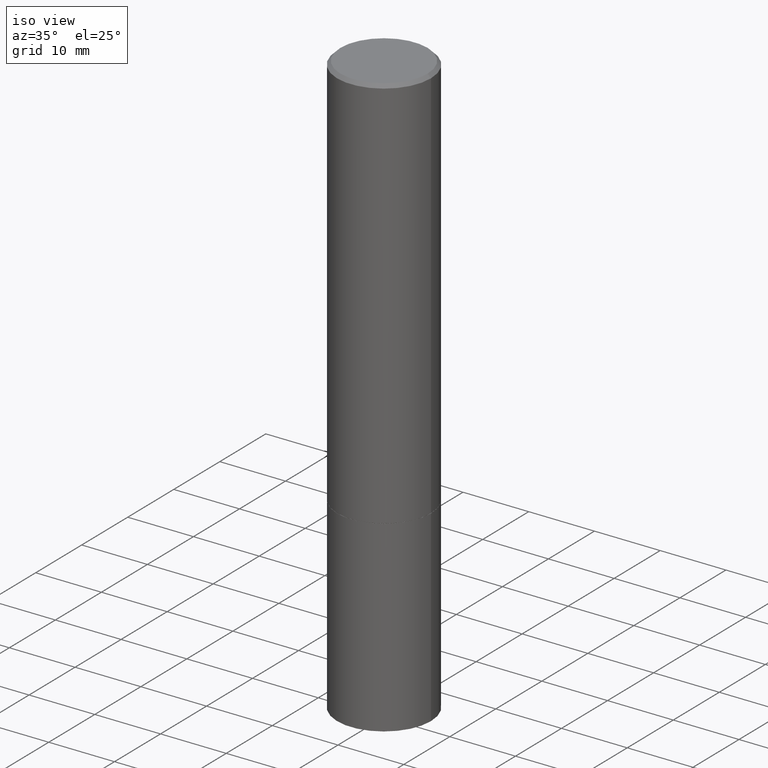
[diagram: clean part render]
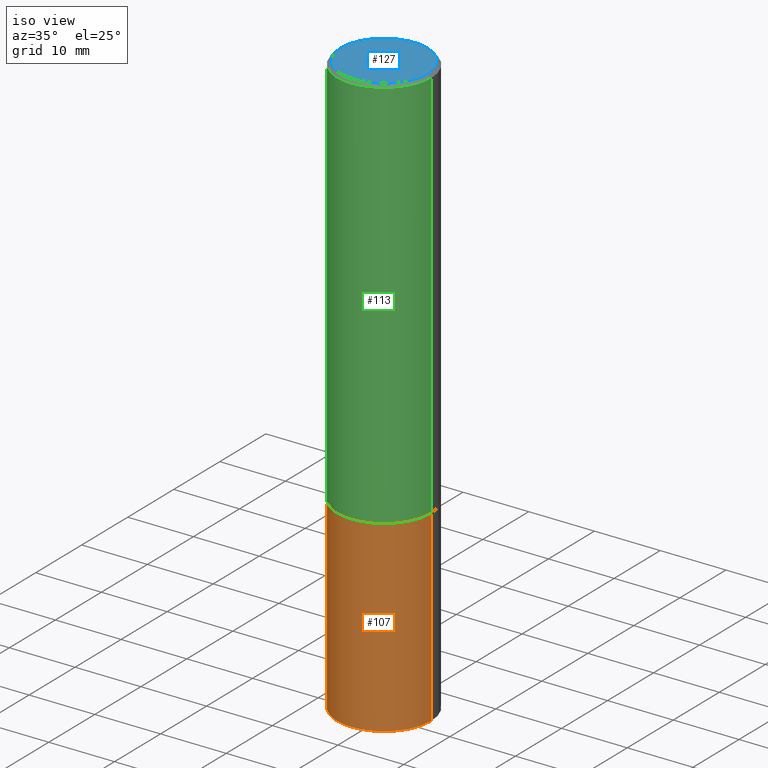
[diagram: same view with three faces highlighted in distinct colors, each labeled with its STEP entity id]
A machine part, iso view with three faces highlighted in distinct colors.
Their STEP definitions:

[orange] entity #107 — the highlighted cylindrical surface (partial cylindrical patch) has radius 7.1437 mm, axis along (-0, 0, 1).
#2 = DIRECTION ( 'NONE',  ( -2.445468806185136597E-29, 3.491481338843145583E-15, 1.000000000000000000 ) ) ;
#19 = VERTEX_POINT ( 'NONE', #61 ) ;
#28 = CARTESIAN_POINT ( 'NONE',  ( 5.807988414689698296E-29, -8.292268179752468540E-15, -2.374999999999999556 ) ) ;
#34 = DIRECTION ( 'NONE',  ( 1.000000000000000000, -6.982962677686269866E-15, 0.000000000000000000 ) ) ;
#51 = AXIS2_PLACEMENT_3D ( 'NONE', #330, #95, #180 ) ;
#54 = DIRECTION ( 'NONE',  ( -2.445468806185136877E-29, 3.491481338843145188E-15, 1.000000000000000000 ) ) ;
#55 = VERTEX_POINT ( 'NONE', #242 ) ;
#61 = CARTESIAN_POINT ( 'NONE',  ( -0.2812500000000000000, -8.257824988526457957E-15, -2.374999999999999556 ) ) ;
#69 = CARTESIAN_POINT ( 'NONE',  ( 0.2812500000000000000, -1.963958253099262512E-15, 1.371424718192607012E-29 ) ) ;
#71 = CARTESIAN_POINT ( 'NONE',  ( 8.559140821647976968E-29, -1.222018468595100934E-14, -3.500000000000000000 ) ) ;
#84 = CARTESIAN_POINT ( 'NONE',  ( 0.2812499999999998890, -1.414969974782425102E-14, -3.500000000000000000 ) ) ;
#90 = CARTESIAN_POINT ( 'NONE',  ( -0.2812500000000000000, 1.998401444325281773E-15, -1.383450494134192269E-29 ) ) ;
#95 = DIRECTION ( 'NONE',  ( -2.445468806185136597E-29, 3.491481338843145583E-15, 1.000000000000000000 ) ) ;
#96 = EDGE_CURVE ( 'NONE', #19, #55, #267, .T. ) ;
#101 = VERTEX_POINT ( 'NONE', #120 ) ;
#107 = ADVANCED_FACE ( 'NONE', ( #150 ), #123, .T. ) ;
#120 = CARTESIAN_POINT ( 'NONE',  ( -0.2812499999999998890, -1.025622643285174762E-14, -3.500000000000000000 ) ) ;
#123 = CYLINDRICAL_SURFACE ( 'NONE', #51, 0.2812500000000000000 ) ;
#146 = DIRECTION ( 'NONE',  ( -2.445468806185136597E-29, 3.491481338843145583E-15, 1.000000000000000000 ) ) ;
#150 = FACE_OUTER_BOUND ( 'NONE', #157, .T. ) ;
#152 = EDGE_CURVE ( 'NONE', #101, #19, #296, .T. ) ;
#157 = EDGE_LOOP ( 'NONE', ( #179, #205, #274, #183 ) ) ;
#173 = VECTOR ( 'NONE', #54, 39.37007874015748143 ) ;
#179 = ORIENTED_EDGE ( 'NONE', *, *, #152, .F. ) ;
#180 = DIRECTION ( 'NONE',  ( 1.000000000000000000, -6.982962677686266711E-15, 4.876176775795935793E-29 ) ) ;
#183 = ORIENTED_EDGE ( 'NONE', *, *, #96, .F. ) ;
#202 = VECTOR ( 'NONE', #214, 39.37007874015748143 ) ;
#205 = ORIENTED_EDGE ( 'NONE', *, *, #333, .T. ) ;
#214 = DIRECTION ( 'NONE',  ( -2.445468806185136877E-29, 3.491481338843145188E-15, 1.000000000000000000 ) ) ;
#232 = AXIS2_PLACEMENT_3D ( 'NONE', #71, #2, #34 ) ;
#233 = VERTEX_POINT ( 'NONE', #84 ) ;
#242 = CARTESIAN_POINT ( 'NONE',  ( 0.2812500000000000000, -1.025622643285173184E-14, -2.374999999999999556 ) ) ;
#246 = DIRECTION ( 'NONE',  ( 1.000000000000000000, -6.982962677686266711E-15, 0.000000000000000000 ) ) ;
#267 = CIRCLE ( 'NONE', #346, 0.2812500000000000000 ) ;
#268 = CIRCLE ( 'NONE', #232, 0.2812500000000000000 ) ;
#274 = ORIENTED_EDGE ( 'NONE', *, *, #289, .T. ) ;
#279 = LINE ( 'NONE', #69, #202 ) ;
#289 = EDGE_CURVE ( 'NONE', #233, #55, #279, .T. ) ;
#296 = LINE ( 'NONE', #90, #173 ) ;
#330 = CARTESIAN_POINT ( 'NONE',  ( 0.000000000000000000, 0.000000000000000000, 0.000000000000000000 ) ) ;
#333 = EDGE_CURVE ( 'NONE', #101, #233, #268, .T. ) ;
#346 = AXIS2_PLACEMENT_3D ( 'NONE', #28, #146, #246 ) ;

[blue] entity #127 — the highlighted planar face has unit normal (0, -0, -1).
#24 = DIRECTION ( 'NONE',  ( -1.000000000000000000, 6.982962677686265922E-15, -4.876176775795935793E-29 ) ) ;
#60 = CIRCLE ( 'NONE', #210, 0.2612499999999996492 ) ;
#64 = CARTESIAN_POINT ( 'NONE',  ( 0.000000000000000000, 0.000000000000000000, 0.000000000000000000 ) ) ;
#81 = ORIENTED_EDGE ( 'NONE', *, *, #356, .T. ) ;
#83 = EDGE_CURVE ( 'NONE', #207, #354, #192, .T. ) ;
#98 = AXIS2_PLACEMENT_3D ( 'NONE', #64, #363, #182 ) ;
#111 = ORIENTED_EDGE ( 'NONE', *, *, #83, .T. ) ;
#127 = ADVANCED_FACE ( 'NONE', ( #390 ), #215, .F. ) ;
#143 = EDGE_LOOP ( 'NONE', ( #111, #81 ) ) ;
#182 = DIRECTION ( 'NONE',  ( 1.000000000000000000, -6.982962677686266711E-15, 4.876176775795935793E-29 ) ) ;
#186 = AXIS2_PLACEMENT_3D ( 'NONE', #332, #297, #24 ) ;
#192 = CIRCLE ( 'NONE', #98, 0.2612499999999996492 ) ;
#207 = VERTEX_POINT ( 'NONE', #266 ) ;
#210 = AXIS2_PLACEMENT_3D ( 'NONE', #340, #247, #249 ) ;
#215 = PLANE ( 'NONE',  #186 ) ;
#247 = DIRECTION ( 'NONE',  ( -2.445468806185136597E-29, 3.491481338843145583E-15, 1.000000000000000000 ) ) ;
#249 = DIRECTION ( 'NONE',  ( 1.000000000000000000, -6.982962677686266711E-15, 4.876176775795935793E-29 ) ) ;
#266 = CARTESIAN_POINT ( 'NONE',  ( -0.2612499999999996492, 1.859213812933965987E-15, -1.288019758893701349E-29 ) ) ;
#276 = CARTESIAN_POINT ( 'NONE',  ( 0.2612499999999996492, -1.895824895283957203E-15, 1.300802449975685970E-29 ) ) ;
#297 = DIRECTION ( 'NONE',  ( 2.438088387897960049E-29, -3.491481338843145188E-15, -1.000000000000000000 ) ) ;
#332 = CARTESIAN_POINT ( 'NONE',  ( 1.824298999545534733E-15, 0.2612499999999996492, -9.121494997727707190E-16 ) ) ;
#340 = CARTESIAN_POINT ( 'NONE',  ( 0.000000000000000000, 0.000000000000000000, 0.000000000000000000 ) ) ;
#354 = VERTEX_POINT ( 'NONE', #276 ) ;
#356 = EDGE_CURVE ( 'NONE', #354, #207, #60, .T. ) ;
#363 = DIRECTION ( 'NONE',  ( -2.445468806185136597E-29, 3.491481338843145583E-15, 1.000000000000000000 ) ) ;
#390 = FACE_OUTER_BOUND ( 'NONE', #143, .T. ) ;

[green] entity #113 — the highlighted cylindrical surface (partial cylindrical patch) has radius 7.1437 mm, axis along (-0, 0, 1).
#1 = CYLINDRICAL_SURFACE ( 'NONE', #351, 0.2812499999999998890 ) ;
#5 = LINE ( 'NONE', #100, #162 ) ;
#26 = CARTESIAN_POINT ( 'NONE',  ( 0.000000000000000000, 0.000000000000000000, 0.000000000000000000 ) ) ;
#29 = CARTESIAN_POINT ( 'NONE',  ( -0.2812500000000000555, -2.180901718269960671E-15, -2.373999999999999666 ) ) ;
#32 = VECTOR ( 'NONE', #236, 39.37007874015748143 ) ;
#36 = CARTESIAN_POINT ( 'NONE',  ( 4.890937612370292426E-31, -6.982962677686317493E-17, -0.02000000000000007674 ) ) ;
#62 = VERTEX_POINT ( 'NONE', #129 ) ;
#63 = DIRECTION ( 'NONE',  ( -2.445468806185136877E-29, 3.491481338843145188E-15, 1.000000000000000000 ) ) ;
#67 = FACE_OUTER_BOUND ( 'NONE', #85, .T. ) ;
#70 = ORIENTED_EDGE ( 'NONE', *, *, #371, .T. ) ;
#85 = EDGE_LOOP ( 'NONE', ( #321, #70, #348, #291 ) ) ;
#89 = AXIS2_PLACEMENT_3D ( 'NONE', #245, #313, #151 ) ;
#93 = DIRECTION ( 'NONE',  ( -2.445468806185136597E-29, 3.491481338843145583E-15, 1.000000000000000000 ) ) ;
#100 = CARTESIAN_POINT ( 'NONE',  ( -0.2812499999999998890, 1.998401444325280984E-15, -1.383450494134191428E-29 ) ) ;
#113 = ADVANCED_FACE ( 'NONE', ( #67 ), #1, .T. ) ;
#117 = CIRCLE ( 'NONE', #336, 0.2812499999999997224 ) ;
#129 = CARTESIAN_POINT ( 'NONE',  ( 0.2812499999999997224, -1.999344688650104184E-15, -0.02000000000000007674 ) ) ;
#137 = VERTEX_POINT ( 'NONE', #312 ) ;
#140 = VERTEX_POINT ( 'NONE', #29 ) ;
#151 = DIRECTION ( 'NONE',  ( 1.000000000000000000, -6.982962677686265133E-15, 0.000000000000000000 ) ) ;
#158 = DIRECTION ( 'NONE',  ( -2.445468806185136597E-29, 3.491481338843145583E-15, 1.000000000000000000 ) ) ;
#162 = VECTOR ( 'NONE', #63, 39.37007874015748143 ) ;
#191 = EDGE_CURVE ( 'NONE', #137, #62, #380, .T. ) ;
#236 = DIRECTION ( 'NONE',  ( -2.445468806185136877E-29, 3.491481338843145188E-15, 1.000000000000000000 ) ) ;
#238 = CARTESIAN_POINT ( 'NONE',  ( 0.2812499999999998890, -1.963958253099261723E-15, 1.371424718192606451E-29 ) ) ;
#240 = VERTEX_POINT ( 'NONE', #252 ) ;
#244 = DIRECTION ( 'NONE',  ( 1.000000000000000000, -6.982962677686266711E-15, 4.876176775795935793E-29 ) ) ;
#245 = CARTESIAN_POINT ( 'NONE',  ( 5.805542945883512693E-29, -8.288776698413627111E-15, -2.373999999999999666 ) ) ;
#251 = EDGE_CURVE ( 'NONE', #240, #62, #117, .T. ) ;
#252 = CARTESIAN_POINT ( 'NONE',  ( -0.2812499999999997224, 1.894128626322397242E-15, -0.02000000000000007674 ) ) ;
#259 = CIRCLE ( 'NONE', #89, 0.2812500000000000555 ) ;
#264 = EDGE_CURVE ( 'NONE', #140, #240, #5, .T. ) ;
#291 = ORIENTED_EDGE ( 'NONE', *, *, #251, .F. ) ;
#312 = CARTESIAN_POINT ( 'NONE',  ( 0.2812500000000000555, -1.025273495151288883E-14, -2.373999999999999666 ) ) ;
#313 = DIRECTION ( 'NONE',  ( -2.445468806185136597E-29, 3.491481338843145583E-15, 1.000000000000000000 ) ) ;
#321 = ORIENTED_EDGE ( 'NONE', *, *, #264, .F. ) ;
#336 = AXIS2_PLACEMENT_3D ( 'NONE', #36, #158, #365 ) ;
#348 = ORIENTED_EDGE ( 'NONE', *, *, #191, .T. ) ;
#351 = AXIS2_PLACEMENT_3D ( 'NONE', #26, #93, #244 ) ;
#365 = DIRECTION ( 'NONE',  ( 1.000000000000000000, -6.982962677686266711E-15, 0.000000000000000000 ) ) ;
#371 = EDGE_CURVE ( 'NONE', #140, #137, #259, .T. ) ;
#380 = LINE ( 'NONE', #238, #32 ) ;